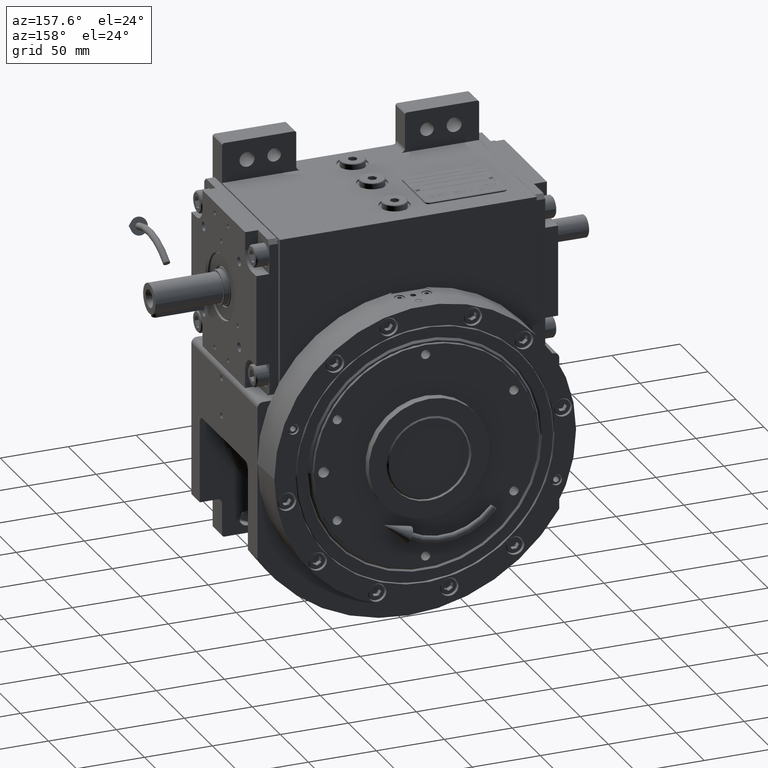
[diagram: clean part render]
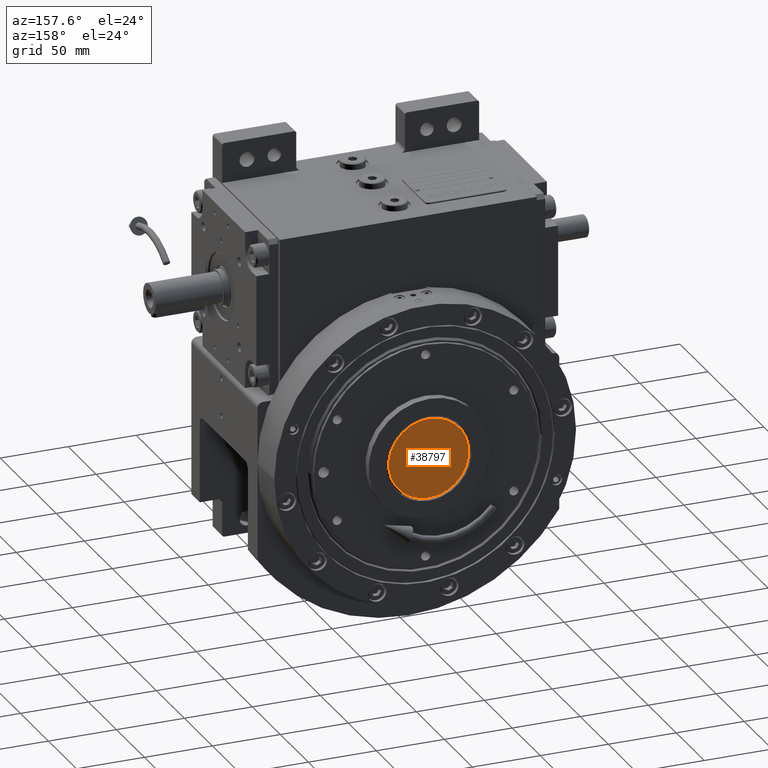
[diagram: same view with one face highlighted and labeled with its STEP entity id]
A machine part, auxiliary view. The second image highlights one B-rep face of the part: STEP entity #38797.
In plain terms, the highlighted planar face has unit normal (-0, -1, 0).
Its self-contained STEP definition (entity closure, byte-faithful):
#4821 = ORIENTED_EDGE ( 'NONE', *, *, #50554, .T. ) ;
#5931 = VERTEX_POINT ( 'NONE', #50484 ) ;
#8267 = CIRCLE ( 'NONE', #46867, 29.50000000000000000 ) ;
#13668 = DIRECTION ( 'NONE',  ( -1.000000000000000000, 1.836970198721010952E-16, 3.295974604355933479E-17 ) ) ;
#15952 = AXIS2_PLACEMENT_3D ( 'NONE', #60985, #19196, #13668 ) ;
#19196 = DIRECTION ( 'NONE',  ( -1.836970198721010952E-16, -1.000000000000000000, 5.187973787693146138E-32 ) ) ;
#26003 = VERTEX_POINT ( 'NONE', #50501 ) ;
#35063 = AXIS2_PLACEMENT_3D ( 'NONE', #41255, #36078, #41587 ) ;
#36078 = DIRECTION ( 'NONE',  ( 1.806464582440950542E-16, 1.000000000000000000, 3.965008273007255203E-32 ) ) ;
#36370 = EDGE_LOOP ( 'NONE', ( #42427, #4821 ) ) ;
#38797 = ADVANCED_FACE ( 'NONE', ( #66144 ), #46151, .F. ) ;
#41104 = DIRECTION ( 'NONE',  ( -1.806464582440950542E-16, -1.000000000000000000, -3.965008273007255203E-32 ) ) ;
#41255 = CARTESIAN_POINT ( 'NONE',  ( 1.776356839400245929E-15, 9.999999999999994671, 1.776356839400249676E-15 ) ) ;
#41587 = DIRECTION ( 'NONE',  ( 1.000000000000000000, -1.764125568789973300E-16, -9.280770596475917955E-17 ) ) ;
#42427 = ORIENTED_EDGE ( 'NONE', *, *, #67051, .F. ) ;
#46151 = PLANE ( 'NONE',  #15952 ) ;
#46867 = AXIS2_PLACEMENT_3D ( 'NONE', #52146, #41104, #63141 ) ;
#50484 = CARTESIAN_POINT ( 'NONE',  ( -29.50000000000026290, 9.999999999999481304, -2.083362800710654304E-15 ) ) ;
#50501 = CARTESIAN_POINT ( 'NONE',  ( 29.50000000000000000, 10.00000000000000888, 1.663567071967674951E-16 ) ) ;
#50554 = EDGE_CURVE ( 'NONE', #26003, #5931, #57074, .T. ) ;
#52146 = CARTESIAN_POINT ( 'NONE',  ( 1.776356839400245929E-15, 9.999999999999994671, -1.776356839400250070E-15 ) ) ;
#57074 = CIRCLE ( 'NONE', #35063, 29.50000000000000000 ) ;
#60985 = CARTESIAN_POINT ( 'NONE',  ( 2.203923452243662307E-18, 9.999999999999994671, 3.851859888774471706E-31 ) ) ;
#63141 = DIRECTION ( 'NONE',  ( 1.000000000000000000, -1.764125568789973300E-16, 2.688821387764050688E-17 ) ) ;
#66144 = FACE_OUTER_BOUND ( 'NONE', #36370, .T. ) ;
#67051 = EDGE_CURVE ( 'NONE', #26003, #5931, #8267, .T. ) ;